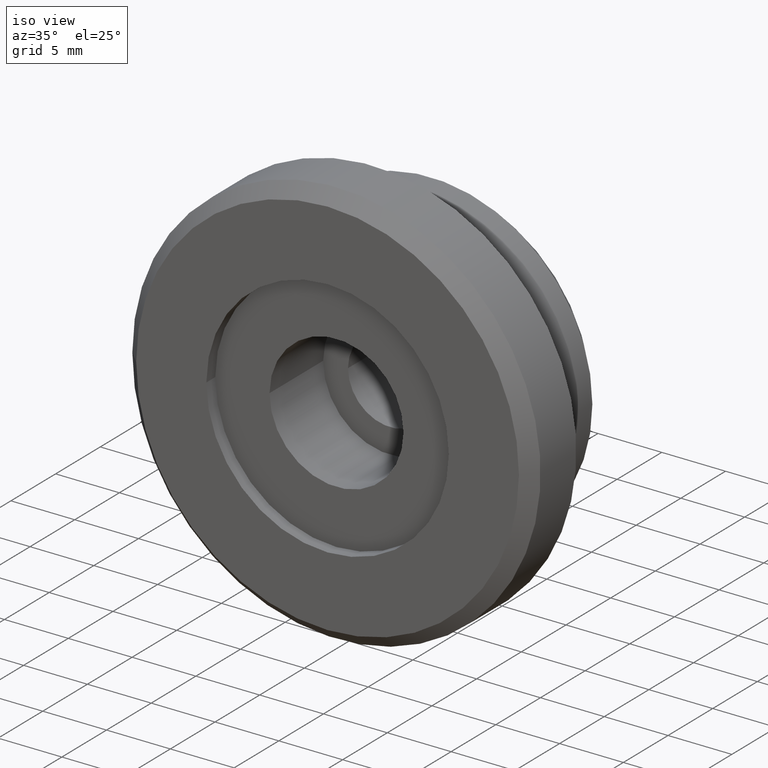
[diagram: clean part render]
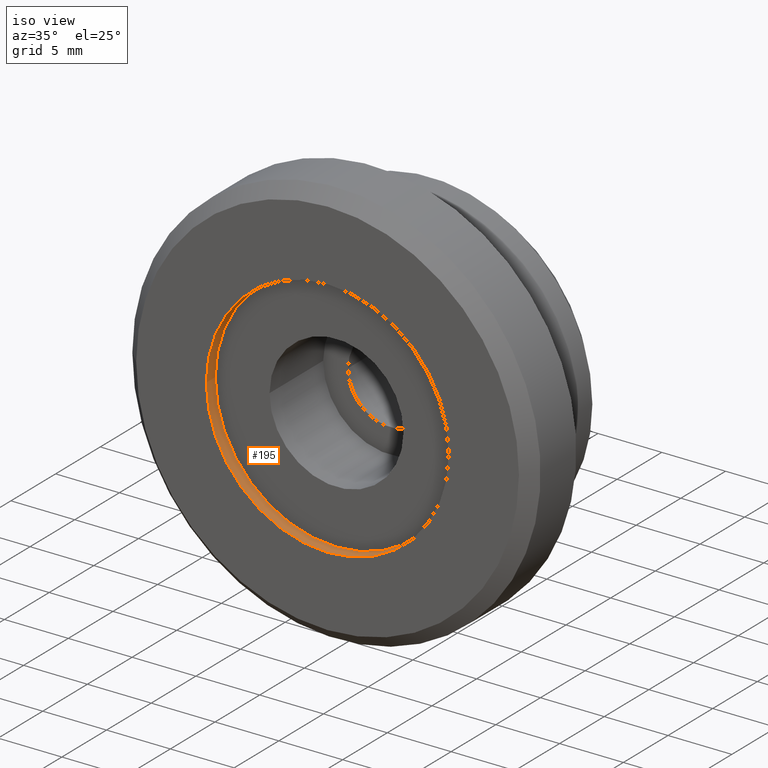
[diagram: same view with one face highlighted and labeled with its STEP entity id]
A machine part, iso view. The second image highlights one B-rep face of the part: STEP entity #195.
In plain terms, the highlighted cylindrical surface (bore or boss wall) has radius 9.5 mm, axis along (-0, 1, 0).
Its self-contained STEP definition (entity closure, byte-faithful):
#6 = AXIS2_PLACEMENT_3D ( 'NONE', #321, #231, #261 ) ;
#12 = ORIENTED_EDGE ( 'NONE', *, *, #234, .F. ) ;
#14 = CARTESIAN_POINT ( 'NONE',  ( -9.500000000000076383, -12.40000000000007674, 0.000000000000000000 ) ) ;
#28 = CARTESIAN_POINT ( 'NONE',  ( 1.707404996040190150E-16, -12.40000000000007674, 0.000000000000000000 ) ) ;
#41 = AXIS2_PLACEMENT_3D ( 'NONE', #28, #170, #319 ) ;
#55 = CYLINDRICAL_SURFACE ( 'NONE', #41, 9.500000000000076383 ) ;
#59 = DIRECTION ( 'NONE',  ( -1.000000000000000000, 0.000000000000000000, 0.000000000000000000 ) ) ;
#82 = DIRECTION ( 'NONE',  ( 3.414809992080329023E-17, -1.000000000000000000, -0.000000000000000000 ) ) ;
#91 = CARTESIAN_POINT ( 'NONE',  ( -9.500000000000076383, -11.40000000000000036, 0.000000000000000000 ) ) ;
#114 = CIRCLE ( 'NONE', #6, 9.500000000000076383 ) ;
#147 = ORIENTED_EDGE ( 'NONE', *, *, #265, .F. ) ;
#159 = AXIS2_PLACEMENT_3D ( 'NONE', #350, #82, #59 ) ;
#170 = DIRECTION ( 'NONE',  ( -3.414809992080329023E-17, 1.000000000000000000, 0.000000000000000000 ) ) ;
#195 = ADVANCED_FACE ( 'NONE', ( #267, #198 ), #55, .F. ) ;
#198 = FACE_OUTER_BOUND ( 'NONE', #239, .T. ) ;
#210 = VERTEX_POINT ( 'NONE', #14 ) ;
#224 = CIRCLE ( 'NONE', #159, 9.500000000000076383 ) ;
#231 = DIRECTION ( 'NONE',  ( -3.414809992080329023E-17, 1.000000000000000000, 0.000000000000000000 ) ) ;
#234 = EDGE_CURVE ( 'NONE', #210, #210, #114, .T. ) ;
#239 = EDGE_LOOP ( 'NONE', ( #147 ) ) ;
#261 = DIRECTION ( 'NONE',  ( -1.000000000000000000, 0.000000000000000000, 0.000000000000000000 ) ) ;
#265 = EDGE_CURVE ( 'NONE', #329, #329, #224, .T. ) ;
#267 = FACE_OUTER_BOUND ( 'NONE', #295, .T. ) ;
#295 = EDGE_LOOP ( 'NONE', ( #12 ) ) ;
#319 = DIRECTION ( 'NONE',  ( -1.000000000000000000, 0.000000000000000000, 0.000000000000000000 ) ) ;
#321 = CARTESIAN_POINT ( 'NONE',  ( 1.707404996040190150E-16, -12.40000000000007674, 0.000000000000000000 ) ) ;
#329 = VERTEX_POINT ( 'NONE', #91 ) ;
#350 = CARTESIAN_POINT ( 'NONE',  ( 1.365923996832130623E-16, -11.40000000000000036, 0.000000000000000000 ) ) ;